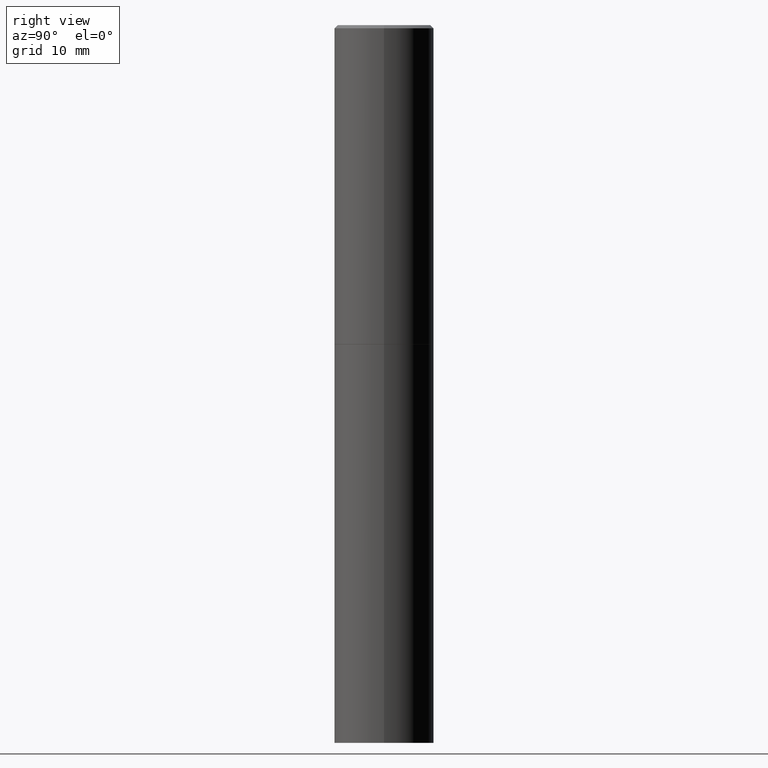
[diagram: clean part render]
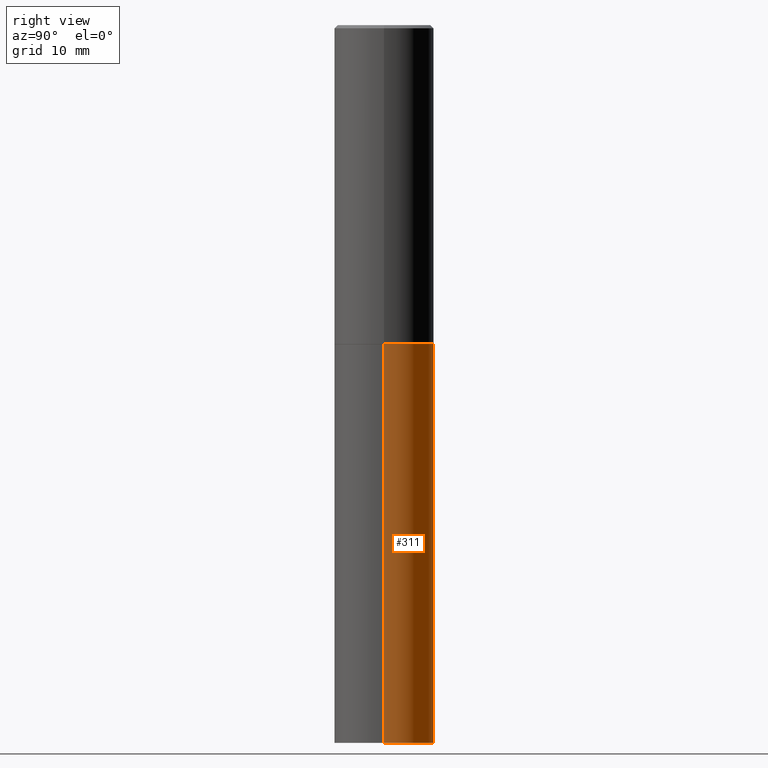
[diagram: same view with one face highlighted and labeled with its STEP entity id]
A machine part, right view. The second image highlights one B-rep face of the part: STEP entity #311.
In plain terms, the highlighted cylindrical surface (partial cylindrical patch) has radius 7.9375 mm, axis along (-0, 0, 1).
Its self-contained STEP definition (entity closure, byte-faithful):
#2 = AXIS2_PLACEMENT_3D ( 'NONE', #198, #112, #344 ) ;
#9 = ORIENTED_EDGE ( 'NONE', *, *, #246, .T. ) ;
#13 = DIRECTION ( 'NONE',  ( 1.000000000000000000, -6.982962677686269077E-15, 0.000000000000000000 ) ) ;
#24 = EDGE_LOOP ( 'NONE', ( #9, #308, #227, #123 ) ) ;
#30 = VECTOR ( 'NONE', #107, 39.37007874015748143 ) ;
#33 = CARTESIAN_POINT ( 'NONE',  ( 0.3125000000000000000, -9.165138514463248723E-15, -2.000000000000000000 ) ) ;
#58 = EDGE_CURVE ( 'NONE', #234, #263, #155, .T. ) ;
#62 = CARTESIAN_POINT ( 'NONE',  ( 1.100460962783311469E-28, -1.571166602479415690E-14, -4.500000000000000000 ) ) ;
#78 = DIRECTION ( 'NONE',  ( -2.445468806185136597E-29, 3.491481338843145583E-15, 1.000000000000000000 ) ) ;
#107 = DIRECTION ( 'NONE',  ( -2.445468806185136877E-29, 3.491481338843145188E-15, 1.000000000000000000 ) ) ;
#111 = CIRCLE ( 'NONE', #157, 0.3125000000000000000 ) ;
#112 = DIRECTION ( 'NONE',  ( -2.445468806185136597E-29, 3.491481338843145583E-15, 1.000000000000000000 ) ) ;
#119 = DIRECTION ( 'NONE',  ( -2.445468806185136877E-29, 3.491481338843145188E-15, 1.000000000000000000 ) ) ;
#123 = ORIENTED_EDGE ( 'NONE', *, *, #262, .F. ) ;
#129 = DIRECTION ( 'NONE',  ( 1.000000000000000000, -6.982962677686266711E-15, 4.876176775795936353E-29 ) ) ;
#131 = LINE ( 'NONE', #245, #30 ) ;
#134 = VECTOR ( 'NONE', #119, 39.37007874015748143 ) ;
#155 = CIRCLE ( 'NONE', #2, 0.3125000000000000000 ) ;
#157 = AXIS2_PLACEMENT_3D ( 'NONE', #62, #173, #13 ) ;
#173 = DIRECTION ( 'NONE',  ( -2.445468806185136597E-29, 3.491481338843145583E-15, 1.000000000000000000 ) ) ;
#198 = CARTESIAN_POINT ( 'NONE',  ( 4.890937612370273194E-29, -6.982962677686291165E-15, -2.000000000000000000 ) ) ;
#209 = CARTESIAN_POINT ( 'NONE',  ( 0.000000000000000000, 0.000000000000000000, 0.000000000000000000 ) ) ;
#226 = VERTEX_POINT ( 'NONE', #286 ) ;
#227 = ORIENTED_EDGE ( 'NONE', *, *, #58, .F. ) ;
#234 = VERTEX_POINT ( 'NONE', #33 ) ;
#235 = EDGE_CURVE ( 'NONE', #226, #263, #131, .T. ) ;
#245 = CARTESIAN_POINT ( 'NONE',  ( -0.3125000000000000000, 2.220446049250313081E-15, -1.537167215704658232E-29 ) ) ;
#246 = EDGE_CURVE ( 'NONE', #354, #226, #111, .T. ) ;
#262 = EDGE_CURVE ( 'NONE', #354, #234, #316, .T. ) ;
#263 = VERTEX_POINT ( 'NONE', #292 ) ;
#286 = CARTESIAN_POINT ( 'NONE',  ( -0.3125000000000000000, -9.126868301989911345E-15, -4.500000000000000000 ) ) ;
#288 = CARTESIAN_POINT ( 'NONE',  ( 0.3125000000000000000, -2.182175836776958347E-15, 1.523805242436230075E-29 ) ) ;
#292 = CARTESIAN_POINT ( 'NONE',  ( -0.3125000000000000000, -9.126868301989911345E-15, -2.000000000000000000 ) ) ;
#303 = CARTESIAN_POINT ( 'NONE',  ( 0.3125000000000000000, -1.789384186157111367E-14, -4.500000000000000000 ) ) ;
#308 = ORIENTED_EDGE ( 'NONE', *, *, #235, .T. ) ;
#311 = ADVANCED_FACE ( 'NONE', ( #365 ), #329, .T. ) ;
#316 = LINE ( 'NONE', #288, #134 ) ;
#329 = CYLINDRICAL_SURFACE ( 'NONE', #336, 0.3125000000000000000 ) ;
#336 = AXIS2_PLACEMENT_3D ( 'NONE', #209, #78, #129 ) ;
#344 = DIRECTION ( 'NONE',  ( 1.000000000000000000, -6.982962677686265133E-15, 0.000000000000000000 ) ) ;
#354 = VERTEX_POINT ( 'NONE', #303 ) ;
#365 = FACE_OUTER_BOUND ( 'NONE', #24, .T. ) ;